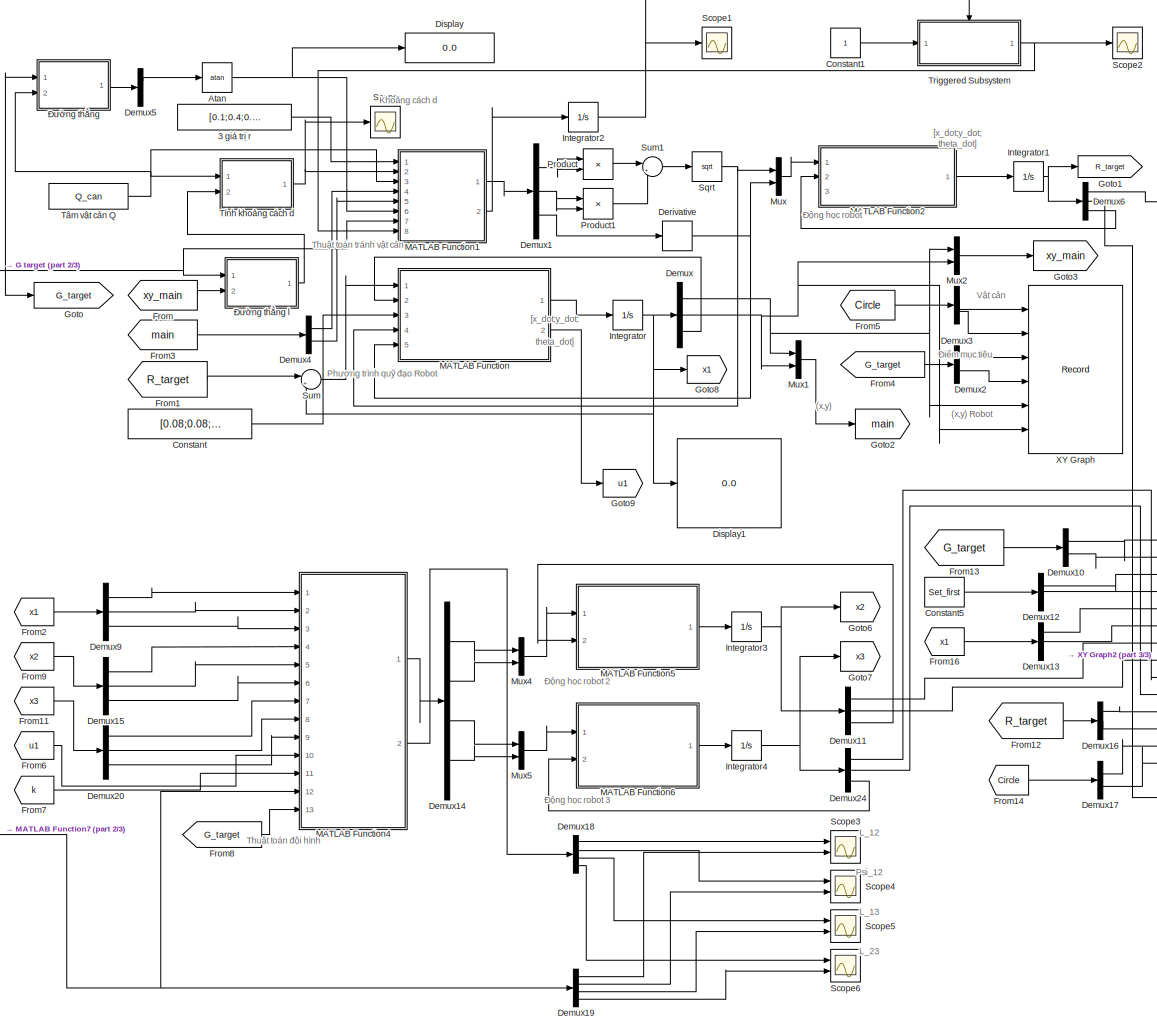
[diagram: root canvas - part 1/3, center side, full height]
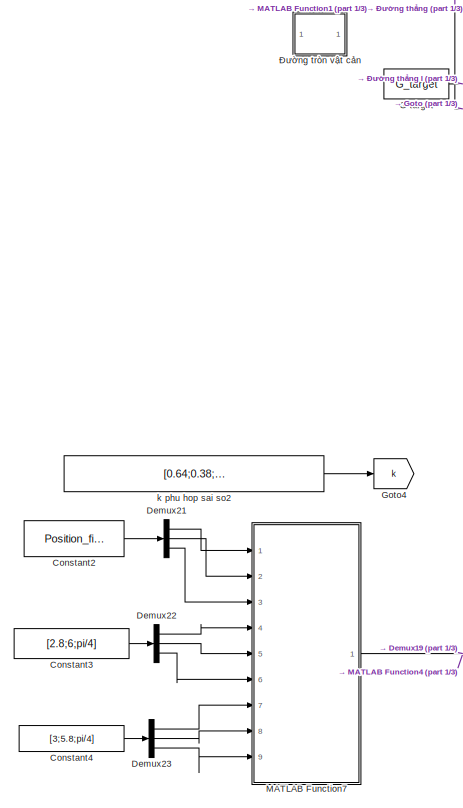
[diagram: root canvas - part 2/3, left side, full height]
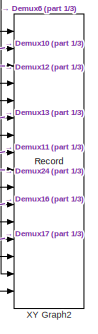
[diagram: root canvas - part 3/3, middle right region]
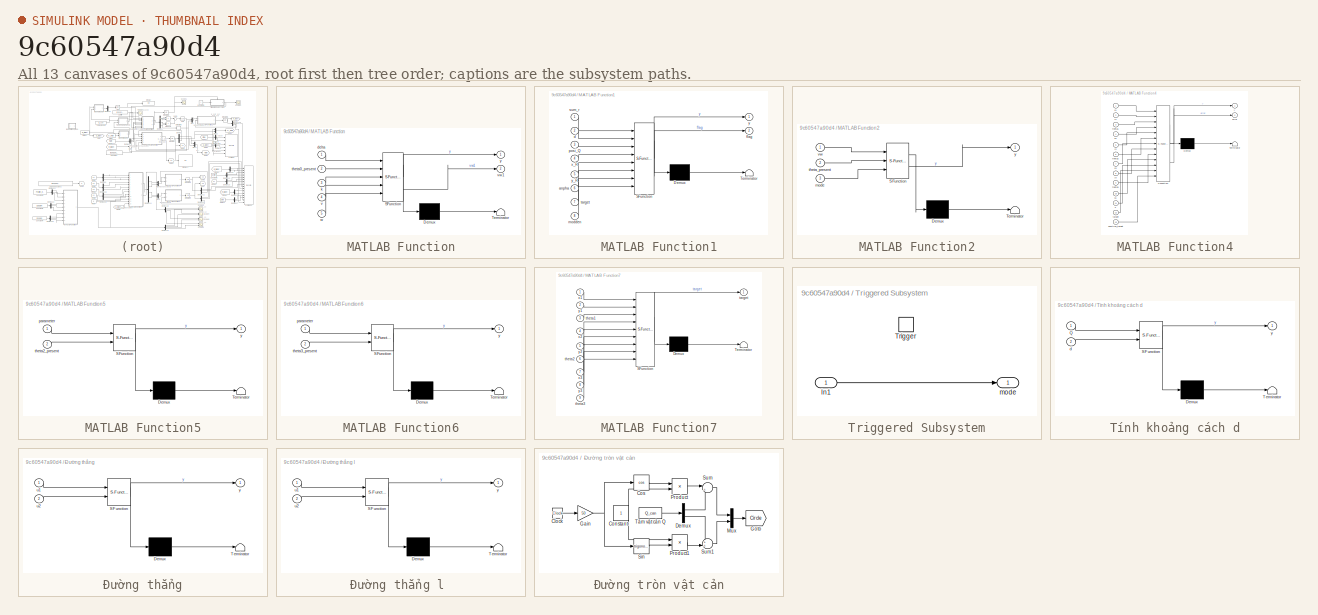
[diagram: thumbnail index - all 13 canvases of the model, root first then tree order]
MODEL slx_9c60547a90d4
KIND model
CONFIG AbsTol = auto
CONFIG EnableMultiTasking = off
CONFIG FixedStep = 0.01
CONFIG MaxStep = auto
CONFIG MinStep = auto
CONFIG RelTol = 1e-3
CONFIG SampleTimeConstraint = Unconstrained
CONFIG SolverName = FixedStepAuto
CONFIG StartTime = 0.0
CONFIG StopTime = 40
BLOCK [Constant] 3 giá trị r
  Value = [0.1;0.4;0.5]
BLOCK [Trigonometry] Atan
  Operator = atan
  Ports = [1, 1]
BLOCK [Constant] Constant
  Value = [0.08;0.08;0.15]
BLOCK [Constant] Constant1
BLOCK [Constant] Constant2
  Value = Position_first_vehicle
BLOCK [Constant] Constant3
  Value = [2.8;6;pi/4]
BLOCK [Constant] Constant4
  Value = [3;5.8;pi/4]
BLOCK [Constant] Constant5
  Value = Set_first
BLOCK [Demux] Demux
  Outputs = 3
  Ports = [1, 3]
BLOCK [Demux] Demux1
  Outputs = 3
  Ports = [1, 3]
BLOCK [Demux] Demux10
  Outputs = 2
  Ports = [1, 2]
BLOCK [Demux] Demux11
  Outputs = 3
  Ports = [1, 3]
BLOCK [Demux] Demux12
  Outputs = 2
  Ports = [1, 2]
BLOCK [Demux] Demux13
  Outputs = 3
  Ports = [1, 3]
BLOCK [Demux] Demux14
  Ports = [1, 4]
BLOCK [Demux] Demux15
  Outputs = 3
  Ports = [1, 3]
BLOCK [Demux] Demux16
  Outputs = 3
  Ports = [1, 3]
BLOCK [Demux] Demux17
  Outputs = 2
  Ports = [1, 2]
BLOCK [Demux] Demux18
  Ports = [1, 4]
BLOCK [Demux] Demux19
  Ports = [1, 4]
BLOCK [Demux] Demux2
  Outputs = 2
  Ports = [1, 2]
BLOCK [Demux] Demux20
  Outputs = 3
  Ports = [1, 3]
BLOCK [Demux] Demux21
  Outputs = 3
  Ports = [1, 3]
BLOCK [Demux] Demux22
  Outputs = 3
  Ports = [1, 3]
BLOCK [Demux] Demux23
  Outputs = 3
  Ports = [1, 3]
BLOCK [Demux] Demux24
  Outputs = 3
  Ports = [1, 3]
BLOCK [Demux] Demux3
  Outputs = 2
  Ports = [1, 2]
BLOCK [Demux] Demux4
  Outputs = 2
  Ports = [1, 2]
BLOCK [Demux] Demux5
  Outputs = 2
  Ports = [1, 2]
BLOCK [Demux] Demux6
  Outputs = 3
  Ports = [1, 3]
BLOCK [Demux] Demux9
  Outputs = 3
  Ports = [1, 3]
BLOCK [Derivative] Derivative
BLOCK [Display] Display
  Decimation = 1
  Ports = [1]
BLOCK [Display] Display1
  Decimation = 1
  Ports = [1]
BLOCK [From] From
  GotoTag = xy_main
BLOCK [From] From1
  GotoTag = R_target
BLOCK [From] From11
  GotoTag = x3
BLOCK [From] From12
  GotoTag = R_target
BLOCK [From] From13
  GotoTag = G_target
BLOCK [From] From14
  GotoTag = Circle
  TagVisibility = global
BLOCK [From] From16
  GotoTag = x1
BLOCK [From] From2
  GotoTag = x1
BLOCK [From] From3
  GotoTag = main
BLOCK [From] From4
  GotoTag = G_target
BLOCK [From] From5
  GotoTag = Circle
  TagVisibility = global
BLOCK [From] From6
  GotoTag = u1
BLOCK [From] From7
  GotoTag = k
BLOCK [From] From8
  GotoTag = G_target
BLOCK [From] From9
  GotoTag = x2
BLOCK [Constant] G target
  Value = G_target
BLOCK [Goto] Goto
  GotoTag = G_target
BLOCK [Goto] Goto1
  GotoTag = R_target
BLOCK [Goto] Goto2
  GotoTag = main
BLOCK [Goto] Goto3
  GotoTag = xy_main
BLOCK [Goto] Goto4
  GotoTag = k
BLOCK [Goto] Goto6
  GotoTag = x2
BLOCK [Goto] Goto7
  GotoTag = x3
BLOCK [Goto] Goto8
  GotoTag = x1
BLOCK [Goto] Goto9
  GotoTag = u1
BLOCK [Integrator] Integrator
  InitialCondition = Position_first_vehicle
  Ports = [1, 1]
BLOCK [Integrator] Integrator1
  InitialCondition = Position_first_vehicle
  Ports = [1, 1]
BLOCK [Integrator] Integrator2
  Ports = [1, 1]
BLOCK [Integrator] Integrator3
  InitialCondition = [2.8;6;pi/4]
  Ports = [1, 1]
BLOCK [Integrator] Integrator4
  InitialCondition = [3;5.8;pi/4]
  Ports = [1, 1]
BLOCK [SubSystem] MATLAB Function
  ErrorFcn = Stateflow.Translate.translate
  PermitHierarchicalResolution = ExplicitOnly
  Ports = [5, 2]
  RequestExecContextInheritance = off
  SFBlockType = MATLAB Function
  TreatAsAtomicUnit = on
BLOCK [Demux] MATLAB Function/ Demux 
  Outputs = 1
  Ports = [1, 1]
BLOCK [S-Function] MATLAB Function/ SFunction 
  EnableBusSupport = on
  FunctionName = sf_sfun
  PortCounts = [5 3]
  Ports = [5, 3]
  SFcnIsStateOwnerBlock = off
  SFunctionDeploymentMode = off
  Tag = Stateflow S-Function 2
BLOCK [Terminator] MATLAB Function/ Terminator 
BLOCK [Inport] MATLAB Function/delta
BLOCK [Inport] MATLAB Function/k
  Port = 3
BLOCK [Inport] MATLAB Function/theta0_present
  Port = 2
BLOCK [Inport] MATLAB Function/v
  Port = 4
BLOCK [Outport] MATLAB Function/vw1
  Port = 2
BLOCK [Inport] MATLAB Function/w
  Port = 5
BLOCK [Outport] MATLAB Function/y
  VectorParamsAs1DForOutWhenUnconnected = off
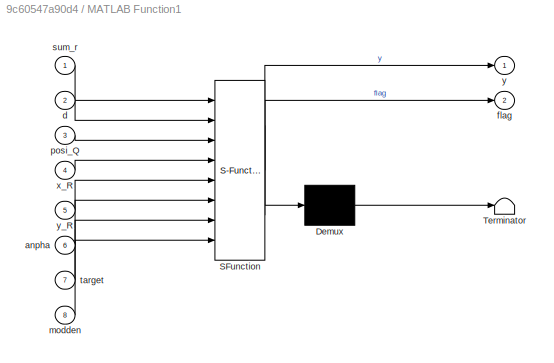
BLOCK [SubSystem] MATLAB Function1
  ErrorFcn = Stateflow.Translate.translate
  PermitHierarchicalResolution = ExplicitOnly
  Ports = [8, 2]
  RequestExecContextInheritance = off
  SFBlockType = MATLAB Function
  TreatAsAtomicUnit = on
BLOCK [Demux] MATLAB Function1/ Demux 
  Outputs = 1
  Ports = [1, 1]
BLOCK [S-Function] MATLAB Function1/ SFunction 
  EnableBusSupport = on
  FunctionName = sf_sfun
  PortCounts = [8 3]
  Ports = [8, 3]
  SFcnIsStateOwnerBlock = off
  SFunctionDeploymentMode = off
  Tag = Stateflow S-Function 4
BLOCK [Terminator] MATLAB Function1/ Terminator 
BLOCK [Inport] MATLAB Function1/anpha
  Port = 6
BLOCK [Inport] MATLAB Function1/d
  Port = 2
BLOCK [Outport] MATLAB Function1/flag
  Port = 2
BLOCK [Inport] MATLAB Function1/modden
  Port = 8
BLOCK [Inport] MATLAB Function1/posi_Q
  Port = 3
BLOCK [Inport] MATLAB Function1/sum_r
BLOCK [Inport] MATLAB Function1/target
  Port = 7
BLOCK [Inport] MATLAB Function1/x_R
  Port = 4
BLOCK [Outport] MATLAB Function1/y
  VectorParamsAs1DForOutWhenUnconnected = off
BLOCK [Inport] MATLAB Function1/y_R
  Port = 5
BLOCK [SubSystem] MATLAB Function2
  ErrorFcn = Stateflow.Translate.translate
  PermitHierarchicalResolution = ExplicitOnly
  Ports = [3, 1]
  RequestExecContextInheritance = off
  SFBlockType = MATLAB Function
  TreatAsAtomicUnit = on
BLOCK [Demux] MATLAB Function2/ Demux 
  Outputs = 1
  Ports = [1, 1]
BLOCK [S-Function] MATLAB Function2/ SFunction 
  EnableBusSupport = on
  FunctionName = sf_sfun
  PortCounts = [3 2]
  Ports = [3, 2]
  SFcnIsStateOwnerBlock = off
  SFunctionDeploymentMode = off
  Tag = Stateflow S-Function 5
BLOCK [Terminator] MATLAB Function2/ Terminator 
BLOCK [Inport] MATLAB Function2/mode
  Port = 3
BLOCK [Inport] MATLAB Function2/theta_present
  Port = 2
BLOCK [Inport] MATLAB Function2/vw
BLOCK [Outport] MATLAB Function2/y
  VectorParamsAs1DForOutWhenUnconnected = off
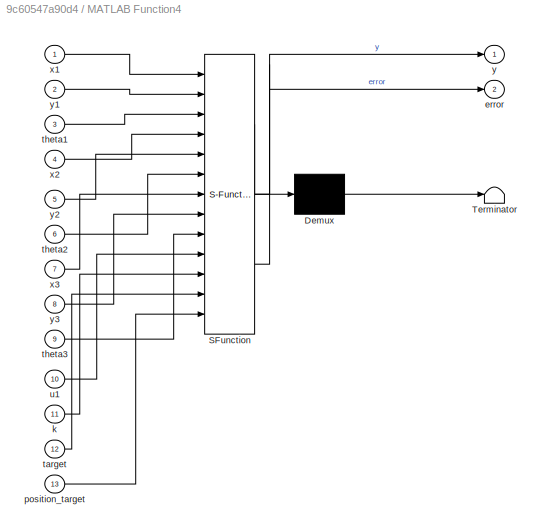
BLOCK [SubSystem] MATLAB Function4
  ErrorFcn = Stateflow.Translate.translate
  PermitHierarchicalResolution = ExplicitOnly
  Ports = [13, 2]
  RequestExecContextInheritance = off
  SFBlockType = MATLAB Function
  TreatAsAtomicUnit = on
BLOCK [Demux] MATLAB Function4/ Demux 
  Outputs = 1
  Ports = [1, 1]
BLOCK [S-Function] MATLAB Function4/ SFunction 
  EnableBusSupport = on
  FunctionName = sf_sfun
  PortCounts = [13 3]
  Ports = [13, 3]
  SFcnIsStateOwnerBlock = off
  SFunctionDeploymentMode = off
  Tag = Stateflow S-Function 8
BLOCK [Terminator] MATLAB Function4/ Terminator 
BLOCK [Outport] MATLAB Function4/error
  Port = 2
BLOCK [Inport] MATLAB Function4/k
  Port = 11
BLOCK [Inport] MATLAB Function4/position_target
  Port = 13
BLOCK [Inport] MATLAB Function4/target
  Port = 12
BLOCK [Inport] MATLAB Function4/theta1
  Port = 3
BLOCK [Inport] MATLAB Function4/theta2
  Port = 6
BLOCK [Inport] MATLAB Function4/theta3
  Port = 9
BLOCK [Inport] MATLAB Function4/u1
  Port = 10
BLOCK [Inport] MATLAB Function4/x1
BLOCK [Inport] MATLAB Function4/x2
  Port = 4
BLOCK [Inport] MATLAB Function4/x3
  Port = 7
BLOCK [Outport] MATLAB Function4/y
  VectorParamsAs1DForOutWhenUnconnected = off
BLOCK [Inport] MATLAB Function4/y1
  Port = 2
BLOCK [Inport] MATLAB Function4/y2
  Port = 5
BLOCK [Inport] MATLAB Function4/y3
  Port = 8
BLOCK [SubSystem] MATLAB Function5
  ErrorFcn = Stateflow.Translate.translate
  PermitHierarchicalResolution = ExplicitOnly
  Ports = [2, 1]
  RequestExecContextInheritance = off
  SFBlockType = MATLAB Function
  TreatAsAtomicUnit = on
BLOCK [Demux] MATLAB Function5/ Demux 
  Outputs = 1
  Ports = [1, 1]
BLOCK [S-Function] MATLAB Function5/ SFunction 
  EnableBusSupport = on
  FunctionName = sf_sfun
  PortCounts = [2 2]
  Ports = [2, 2]
  SFcnIsStateOwnerBlock = off
  SFunctionDeploymentMode = off
  Tag = Stateflow S-Function 9
BLOCK [Terminator] MATLAB Function5/ Terminator 
BLOCK [Inport] MATLAB Function5/parameter
BLOCK [Inport] MATLAB Function5/theta2_present
  Port = 2
BLOCK [Outport] MATLAB Function5/y
  VectorParamsAs1DForOutWhenUnconnected = off
BLOCK [SubSystem] MATLAB Function6
  ErrorFcn = Stateflow.Translate.translate
  PermitHierarchicalResolution = ExplicitOnly
  Ports = [2, 1]
  RequestExecContextInheritance = off
  SFBlockType = MATLAB Function
  TreatAsAtomicUnit = on
BLOCK [Demux] MATLAB Function6/ Demux 
  Outputs = 1
  Ports = [1, 1]
BLOCK [S-Function] MATLAB Function6/ SFunction 
  EnableBusSupport = on
  FunctionName = sf_sfun
  PortCounts = [2 2]
  Ports = [2, 2]
  SFcnIsStateOwnerBlock = off
  SFunctionDeploymentMode = off
  Tag = Stateflow S-Function 10
BLOCK [Terminator] MATLAB Function6/ Terminator 
BLOCK [Inport] MATLAB Function6/parameter
BLOCK [Inport] MATLAB Function6/theta3_present
  Port = 2
BLOCK [Outport] MATLAB Function6/y
  VectorParamsAs1DForOutWhenUnconnected = off
BLOCK [SubSystem] MATLAB Function7
  ErrorFcn = Stateflow.Translate.translate
  PermitHierarchicalResolution = ExplicitOnly
  Ports = [9, 1]
  RequestExecContextInheritance = off
  SFBlockType = MATLAB Function
  TreatAsAtomicUnit = on
BLOCK [Demux] MATLAB Function7/ Demux 
  Outputs = 1
  Ports = [1, 1]
BLOCK [S-Function] MATLAB Function7/ SFunction 
  EnableBusSupport = on
  FunctionName = sf_sfun
  PortCounts = [9 2]
  Ports = [9, 2]
  SFcnIsStateOwnerBlock = off
  SFunctionDeploymentMode = off
  Tag = Stateflow S-Function 11
BLOCK [Terminator] MATLAB Function7/ Terminator 
BLOCK [Outport] MATLAB Function7/target
  VectorParamsAs1DForOutWhenUnconnected = off
BLOCK [Inport] MATLAB Function7/theta1
  Port = 3
BLOCK [Inport] MATLAB Function7/theta2
  Port = 6
BLOCK [Inport] MATLAB Function7/theta3
  Port = 9
BLOCK [Inport] MATLAB Function7/x1
BLOCK [Inport] MATLAB Function7/x2
  Port = 4
BLOCK [Inport] MATLAB Function7/x3
  Port = 7
BLOCK [Inport] MATLAB Function7/y1
  Port = 2
BLOCK [Inport] MATLAB Function7/y2
  Port = 5
BLOCK [Inport] MATLAB Function7/y3
  Port = 8
BLOCK [Mux] Mux
  DisplayOption = bar
  Inputs = 2
  Ports = [2, 1]
BLOCK [Mux] Mux1
  DisplayOption = bar
  Inputs = 2
  Ports = [2, 1]
BLOCK [Mux] Mux2
  DisplayOption = bar
  Inputs = 2
  Ports = [2, 1]
BLOCK [Mux] Mux4
  DisplayOption = bar
  Inputs = 2
  Ports = [2, 1]
BLOCK [Mux] Mux5
  DisplayOption = bar
  Inputs = 2
  Ports = [2, 1]
BLOCK [Product] Product
  Ports = [2, 1]
BLOCK [Product] Product1
  Ports = [2, 1]
BLOCK [Scope] Scope
  Floating = off
  NumInputPorts = 1
  Ports = [1]
  ScopeSpecificationString = Simulink.scopes.TimeScopeBlockCfg('CurrentConfiguration', extmgr.ConfigurationSet(extmgr.Configuration('Core','General UI',true),extmgr.Configuration('Core','Source UI',true),extmgr.Configuration('Sources','WiredSimulink',true,'DataLoggingVariableName','ScopeData1'),extmgr.Configuration('Visuals','Time Domain',true,'SerializedDisplays',{struct('MinYLimReal','-0.87445','MaxYLimReal','-0.08367','YLa...<+1408ch>
BLOCK [Scope] Scope1
  Floating = off
  NumInputPorts = 1
  Ports = [1]
  ScopeSpecificationString = Simulink.scopes.TimeScopeBlockCfg('CurrentConfiguration', extmgr.ConfigurationSet(extmgr.Configuration('Core','General UI',true),extmgr.Configuration('Core','Source UI',true),extmgr.Configuration('Sources','WiredSimulink',true,'DataLoggingVariableName','ScopeData2'),extmgr.Configuration('Visuals','Time Domain',true,'SerializedDisplays',{struct('MinYLimReal','-2.34375','MaxYLimReal','21.09375','YLa...<+1521ch>
BLOCK [Scope] Scope2
  Floating = off
  NumInputPorts = 1
  Ports = [1]
  ScopeSpecificationString = Simulink.scopes.TimeScopeBlockCfg('CurrentConfiguration', extmgr.ConfigurationSet(extmgr.Configuration('Core','General UI',true),extmgr.Configuration('Core','Source UI',true),extmgr.Configuration('Sources','WiredSimulink',true),extmgr.Configuration('Visuals','Time Domain',true,'SerializedDisplays',{struct('MinYLimReal','-0.125','MaxYLimReal','1.125','YLabelReal','','MinYLimMag','0.00000','MaxYLimM...<+1358ch>
BLOCK [Scope] Scope3
  Floating = off
  NumInputPorts = 2
  Ports = [2]
  ScopeSpecificationString = Simulink.scopes.TimeScopeBlockCfg('CurrentConfiguration', extmgr.ConfigurationSet(extmgr.Configuration('Core','General UI',true,'FigureColor',[1 1 1]),extmgr.Configuration('Core','Source UI',true),extmgr.Configuration('Sources','WiredSimulink',true,'DataLoggingVariableName','ScopeData1'),extmgr.Configuration('Visuals','Time Domain',true,'SerializedDisplays',{struct('MinYLimReal','0.14733','MaxYLim...<+1781ch>
BLOCK [Scope] Scope4
  Floating = off
  NumInputPorts = 2
  Ports = [2]
  ScopeSpecificationString = Simulink.scopes.TimeScopeBlockCfg('CurrentConfiguration', extmgr.ConfigurationSet(extmgr.Configuration('Core','General UI',true,'FigureColor',[1 1 1]),extmgr.Configuration('Core','Source UI',true),extmgr.Configuration('Sources','WiredSimulink',true,'DataLoggingVariableName','ScopeData2'),extmgr.Configuration('Visuals','Time Domain',true,'SerializedDisplays',{struct('MinYLimReal','1.49617','MaxYLim...<+1787ch>
BLOCK [Scope] Scope5
  Floating = off
  NumInputPorts = 2
  Ports = [2]
  ScopeSpecificationString = Simulink.scopes.TimeScopeBlockCfg('CurrentConfiguration', extmgr.ConfigurationSet(extmgr.Configuration('Core','General UI',true,'FigureColor',[1 1 1]),extmgr.Configuration('Core','Source UI',true),extmgr.Configuration('Sources','WiredSimulink',true,'DataLoggingVariableName','ScopeData3'),extmgr.Configuration('Visuals','Time Domain',true,'SerializedDisplays',{struct('MinYLimReal','0.14867','MaxYLim...<+1671ch>
BLOCK [Scope] Scope6
  Floating = off
  NumInputPorts = 2
  Ports = [2]
  ScopeSpecificationString = Simulink.scopes.TimeScopeBlockCfg('CurrentConfiguration', extmgr.ConfigurationSet(extmgr.Configuration('Core','General UI',true,'FigureColor',[1 1 1]),extmgr.Configuration('Core','Source UI',true),extmgr.Configuration('Sources','WiredSimulink',true,'DataLoggingVariableName','ScopeData4'),extmgr.Configuration('Visuals','Time Domain',true,'SerializedDisplays',{struct('MinYLimReal','0.2968','MaxYLimR...<+1669ch>
BLOCK [Sqrt] Sqrt
BLOCK [Sum] Sum
  Inputs = |+-
  Ports = [2, 1]
BLOCK [Sum] Sum1
  Inputs = |++
  Ports = [2, 1]
BLOCK [SubSystem] Triggered Subsystem
  Ports = [1, 1, 0, 1]
  RequestExecContextInheritance = off
  TreatAsAtomicUnit = on
BLOCK [Inport] Triggered Subsystem/In1
BLOCK [TriggerPort] Triggered Subsystem/Trigger
  Ports = []
  StatesWhenEnabling = held
  VariantControl = (inherit)
BLOCK [Outport] Triggered Subsystem/mode
BLOCK [Constant] Tâm vật cản Q
  Value = Q_can
BLOCK [SubSystem] Tính khoảng cách d
  ErrorFcn = Stateflow.Translate.translate
  PermitHierarchicalResolution = ExplicitOnly
  Ports = [2, 1]
  RequestExecContextInheritance = off
  SFBlockType = MATLAB Function
  TreatAsAtomicUnit = on
BLOCK [Demux] Tính khoảng cách d/ Demux 
  Outputs = 1
  Ports = [1, 1]
BLOCK [S-Function] Tính khoảng cách d/ SFunction 
  EnableBusSupport = on
  FunctionName = sf_sfun
  PortCounts = [2 2]
  Ports = [2, 2]
  SFcnIsStateOwnerBlock = off
  SFunctionDeploymentMode = off
  Tag = Stateflow S-Function 3
BLOCK [Terminator] Tính khoảng cách d/ Terminator 
BLOCK [Inport] Tính khoảng cách d/Q
BLOCK [Inport] Tính khoảng cách d/d
  Port = 2
BLOCK [Outport] Tính khoảng cách d/y
  VectorParamsAs1DForOutWhenUnconnected = off
BLOCK [Record] XY Graph
  CompatibilityTag = XY
  FileSettingsInternal = {"entries":[{"content":{"excelSettings":{"content":{},"type":"Streamout.ExcelSettings"}},"type":"Streamout.FileSettingStorage","uuid":"a8d3b570-9e37-41a1-b9b1-4b418e9d51ca"}],"packageUris":["http://schema.mathworks.com/mf0/streamout_blocks/R2020a"],"version":"1.0"}
  Layout = [1 1]
  Ports = [6]
  SignalsInternal = {"entries":[{"content":{"signals":[{"content":{"blockPath":["Avoid_vat_can_3xe/XY Graph"],"channel":[],"dimensions":[1],"domain":"Avoid_vat_can_3xe/XY Graph","lineColor":"#ff6929","plots":[1],"port":1,"sid":[""],"signalID":4338,"signalName":"Demux3:1"},"type":"RecordBlkView.Signal","uuid":"8399b9d0-b1dd-4b64-90be-267014180888"},{"content":{"blockPath":["Avoid_vat_can_3xe/XY Graph"],"channel":[],"d...<+1579ch>
  VisualizationBindings = {"xyplotplugin":{"info":[{"series":[{"bindingParametersList":[{"parameter":"X-Axis","signalID":4338,"signalName":"Demux3:1"},{"parameter":"Y-Axis","signalID":4342,"signalName":"Demux3:2"}],"seriesID":26607},{"bindingParametersList":[{"parameter":"X-Axis","signalID":4402,"signalName":"Demux2:1"},{"parameter":"Y-Axis","signalID":4406,"signalName":"Demux2:2"}],"seriesID":58074},{"bindingParametersLis...<+193ch>
BLOCK [Record] XY Graph2
  CompatibilityTag = XY
  FileSettingsInternal = {"entries":[{"content":{"excelSettings":{"content":{},"type":"Streamout.ExcelSettings"}},"type":"Streamout.FileSettingStorage","uuid":"ed37455e-9adf-4e9b-bed2-b0034767e237"}],"packageUris":["http://schema.mathworks.com/mf0/streamout_blocks/R2020a"],"version":"1.0"}
  Layout = [1 1]
  Ports = [16]
  SignalsInternal = {"entries":[{"content":{"signals":[{"content":{"blockPath":["Avoid_vat_can_3xe/XY Graph2"],"channel":[],"dimensions":[1],"domain":"Avoid_vat_can_3xe/XY Graph2","lineColor":"#ff6929","plots":[1],"port":5,"sid":[""],"signalID":4354,"signalName":"Demux13:1"},"type":"RecordBlkView.Signal","uuid":"0d8b8474-356b-455b-a3d2-928f594b97db"},{"content":{"blockPath":["Avoid_vat_can_3xe/XY Graph2"],"channel":[...<+4592ch>
  VisualizationBindings = {"xyplotplugin":{"info":[{"series":[{"bindingParametersList":[{"parameter":"X-Axis","signalID":4410,"signalName":"Demux10:1"},{"parameter":"Y-Axis","signalID":4414,"signalName":"Demux10:2"}],"seriesID":62746},{"bindingParametersList":[{"parameter":"X-Axis","signalID":4386,"signalName":"Demux17:1"},{"parameter":"Y-Axis","signalID":4390,"signalName":"Demux17:2"}],"seriesID":60584},{"bindingParameter...<+1121ch>
BLOCK [Constant] k phu hop sai so2
  Value = [0.64;0.38;0.053;0.023]
BLOCK [SubSystem] Đường thẳng
  ErrorFcn = Stateflow.Translate.translate
  PermitHierarchicalResolution = ExplicitOnly
  Ports = [2, 1]
  RequestExecContextInheritance = off
  SFBlockType = MATLAB Function
  TreatAsAtomicUnit = on
BLOCK [SubSystem] Đường thẳng l 
  ErrorFcn = Stateflow.Translate.translate
  PermitHierarchicalResolution = ExplicitOnly
  Ports = [2, 1]
  RequestExecContextInheritance = off
  SFBlockType = MATLAB Function
  TreatAsAtomicUnit = on
BLOCK [Demux] Đường thẳng l / Demux 
  Outputs = 1
  Ports = [1, 1]
BLOCK [S-Function] Đường thẳng l / SFunction 
  EnableBusSupport = on
  FunctionName = sf_sfun
  PortCounts = [2 2]
  Ports = [2, 2]
  SFcnIsStateOwnerBlock = off
  SFunctionDeploymentMode = off
  Tag = Stateflow S-Function 1
BLOCK [Terminator] Đường thẳng l / Terminator 
BLOCK [Inport] Đường thẳng l /u1
BLOCK [Inport] Đường thẳng l /u2
  Port = 2
BLOCK [Outport] Đường thẳng l /y
  VectorParamsAs1DForOutWhenUnconnected = off
BLOCK [Demux] Đường thẳng/ Demux 
  Outputs = 1
  Ports = [1, 1]
BLOCK [S-Function] Đường thẳng/ SFunction 
  EnableBusSupport = on
  FunctionName = sf_sfun
  PortCounts = [2 2]
  Ports = [2, 2]
  SFcnIsStateOwnerBlock = off
  SFunctionDeploymentMode = off
  Tag = Stateflow S-Function 6
BLOCK [Terminator] Đường thẳng/ Terminator 
BLOCK [Inport] Đường thẳng/u1
BLOCK [Inport] Đường thẳng/u2
  Port = 2
BLOCK [Outport] Đường thẳng/y
  VectorParamsAs1DForOutWhenUnconnected = off
BLOCK [SubSystem] Đường tròn vật cản
  Ports = []
  RequestExecContextInheritance = off
BLOCK [Clock] Đường tròn vật cản/Clock
BLOCK [Constant] Đường tròn vật cản/Constant
BLOCK [Trigonometry] Đường tròn vật cản/Cos
  Operator = cos
  Ports = [1, 1]
BLOCK [Demux] Đường tròn vật cản/Demux
  Outputs = 2
  Ports = [1, 2]
BLOCK [Gain] Đường tròn vật cản/Gain
  Gain = 50
BLOCK [Goto] Đường tròn vật cản/Goto
  GotoTag = Circle
  TagVisibility = global
BLOCK [Mux] Đường tròn vật cản/Mux
  DisplayOption = bar
  Inputs = 2
  Ports = [2, 1]
BLOCK [Product] Đường tròn vật cản/Product
  Ports = [2, 1]
BLOCK [Product] Đường tròn vật cản/Product1
  Ports = [2, 1]
BLOCK [Trigonometry] Đường tròn vật cản/Sin
  Ports = [1, 1]
BLOCK [Sum] Đường tròn vật cản/Sum
  Inputs = |++
  Ports = [2, 1]
BLOCK [Sum] Đường tròn vật cản/Sum1
  Inputs = ++|
  Ports = [2, 1]
BLOCK [Constant] Đường tròn vật cản/Tâm vật cản Q
  Value = Q_can
ANNOTATION (root): (x,y)
ANNOTATION (root): (x,y) Robot
ANNOTATION (root): L_12
ANNOTATION (root): L_13
ANNOTATION (root): L_23
ANNOTATION (root): Phương trình quỹ đạo Robot
ANNOTATION (root): Psi_12
ANNOTATION (root): Thuật toán tránh vật cản
ANNOTATION (root): Thuật toán đội hình
ANNOTATION (root): Động học robot 2
ANNOTATION (root): Động học robot 3
ANNOTATION (root): Động học robot
ANNOTATION (root): Khoảng cách d
ANNOTATION (root): Vật cản
ANNOTATION (root): [x_dot;y_dot; theta_dot]
ANNOTATION (root): Điểm mục tiêu
LINE 3 giá trị r:1 -> MATLAB Function1:1
NET Atan:1 -> Display:1, MATLAB Function1:6
LINE Constant1:1 -> Triggered Subsystem:1
LINE Constant2:1 -> Demux21:1
LINE Constant3:1 -> Demux22:1
LINE Constant4:1 -> Demux23:1
LINE Constant5:1 -> Demux12:1
LINE Constant:1 -> MATLAB Function:3
LINE Demux10:1 -> XY Graph2:1
LINE Demux10:2 -> XY Graph2:2
LINE Demux11:1 -> XY Graph2:7
LINE Demux11:2 -> XY Graph2:8
LINE Demux11:3 -> MATLAB Function5:2
LINE Demux12:1 -> XY Graph2:3
LINE Demux12:2 -> XY Graph2:4
LINE Demux13:1 -> XY Graph2:5
LINE Demux13:2 -> XY Graph2:6
LINE Demux14:1 -> Mux4:1
LINE Demux14:2 -> Mux4:2
LINE Demux14:3 -> Mux5:1
LINE Demux14:4 -> Mux5:2
LINE Demux15:1 -> MATLAB Function4:4
LINE Demux15:2 -> MATLAB Function4:5
LINE Demux15:3 -> MATLAB Function4:6
LINE Demux16:1 -> XY Graph2:11
LINE Demux16:2 -> XY Graph2:12
LINE Demux17:1 -> XY Graph2:13
LINE Demux17:2 -> XY Graph2:14
LINE Demux18:1 -> Scope3:1
LINE Demux18:2 -> Scope4:1
LINE Demux18:3 -> Scope5:1
LINE Demux18:4 -> Scope6:1
LINE Demux19:1 -> Scope3:2
LINE Demux19:2 -> Scope4:2
LINE Demux19:3 -> Scope5:2
LINE Demux19:4 -> Scope6:2
NET Demux1:1 -> Product:1, Product:2
NET Demux1:2 -> Product1:1, Product1:2
LINE Demux1:3 -> Derivative:1
LINE Demux20:1 -> MATLAB Function4:7
LINE Demux20:2 -> MATLAB Function4:8
LINE Demux20:3 -> MATLAB Function4:9
LINE Demux21:1 -> MATLAB Function7:1
LINE Demux21:2 -> MATLAB Function7:2
LINE Demux21:3 -> MATLAB Function7:3
LINE Demux22:1 -> MATLAB Function7:4
LINE Demux22:2 -> MATLAB Function7:5
LINE Demux22:3 -> MATLAB Function7:6
LINE Demux23:1 -> MATLAB Function7:7
LINE Demux23:2 -> MATLAB Function7:8
LINE Demux23:3 -> MATLAB Function7:9
LINE Demux24:1 -> XY Graph2:9
LINE Demux24:2 -> XY Graph2:10
LINE Demux24:3 -> MATLAB Function6:2
LINE Demux2:1 -> XY Graph:3
LINE Demux2:2 -> XY Graph:4
LINE Demux3:1 -> XY Graph:1
LINE Demux3:2 -> XY Graph:2
LINE Demux4:1 -> MATLAB Function1:4
LINE Demux4:2 -> MATLAB Function1:5
LINE Demux5:1 -> Atan:1
LINE Demux6:1 -> XY Graph2:15
LINE Demux6:2 -> XY Graph2:16
LINE Demux6:3 -> MATLAB Function2:2
LINE Demux9:1 -> MATLAB Function4:1
LINE Demux9:2 -> MATLAB Function4:2
LINE Demux9:3 -> MATLAB Function4:3
NET Demux:1 -> Mux1:1, Mux2:1, XY Graph:5
NET Demux:2 -> Mux1:2, Mux2:2, XY Graph:6
LINE Demux:3 -> MATLAB Function:2
NET Derivative:1 -> MATLAB Function:5, Mux:2
LINE From11:1 -> Demux20:1
LINE From12:1 -> Demux16:1
LINE From13:1 -> Demux10:1
LINE From14:1 -> Demux17:1
LINE From16:1 -> Demux13:1
LINE From1:1 -> Sum:1
LINE From2:1 -> Demux9:1
LINE From3:1 -> Demux4:1
LINE From4:1 -> Demux2:1
LINE From5:1 -> Demux3:1
LINE From6:1 -> MATLAB Function4:10
LINE From7:1 -> MATLAB Function4:11
LINE From8:1 -> MATLAB Function4:13
LINE From9:1 -> Demux15:1
LINE From:1 -> Đường thẳng l :2
NET G target:1 -> Goto:1, MATLAB Function1:7, Đường thẳng l :1, Đường thẳng:1
NET Integrator1:1 -> Demux6:1, Goto1:1
NET Integrator2:1 -> Scope1:1, Triggered Subsystem:trigger
NET Integrator3:1 -> Demux11:1, Goto6:1
NET Integrator4:1 -> Demux24:1, Goto7:1
NET Integrator:1 -> Demux:1, Display1:1, Goto8:1, Sum:2
LINE MATLAB Function1:1 -> Demux1:1
LINE MATLAB Function1:2 -> Integrator2:1
LINE MATLAB Function2:1 -> Integrator1:1
LINE MATLAB Function4:1 -> Demux14:1
LINE MATLAB Function4:2 -> Demux18:1
LINE MATLAB Function5:1 -> Integrator3:1
LINE MATLAB Function6:1 -> Integrator4:1
NET MATLAB Function7:1 -> Demux19:1, MATLAB Function4:12
LINE MATLAB Function:1 -> Integrator:1
LINE MATLAB Function:2 -> Goto9:1
LINE Mux1:1 -> Goto2:1
LINE Mux2:1 -> Goto3:1
LINE Mux4:1 -> MATLAB Function5:1
LINE Mux5:1 -> MATLAB Function6:1
LINE Mux:1 -> MATLAB Function2:1
LINE Product1:1 -> Sum1:2
LINE Product:1 -> Sum1:1
NET Sqrt:1 -> MATLAB Function:4, Mux:1
LINE Sum1:1 -> Sqrt:1
LINE Sum:1 -> MATLAB Function:1
LINE Triggered Subsystem/In1:1 -> Triggered Subsystem/mode:1
NET Triggered Subsystem:1 -> MATLAB Function1:8, Scope2:1
NET Tâm vật cản Q:1 -> MATLAB Function1:3, Tính khoảng cách d:1, Đường thẳng:2
NET Tính khoảng cách d:1 -> MATLAB Function1:2, Scope:1
LINE k phu hop sai so2:1 -> Goto4:1
LINE Đường thẳng l :1 -> Tính khoảng cách d:2
LINE Đường thẳng:1 -> Demux5:1
LINE Đường tròn vật cản/Clock:1 -> Đường tròn vật cản/Gain:1
NET Đường tròn vật cản/Constant:1 -> Đường tròn vật cản/Product1:1, Đường tròn vật cản/Product:2
LINE Đường tròn vật cản/Cos:1 -> Đường tròn vật cản/Product:1
LINE Đường tròn vật cản/Demux:1 -> Đường tròn vật cản/Sum:2
LINE Đường tròn vật cản/Demux:2 -> Đường tròn vật cản/Sum1:1
NET Đường tròn vật cản/Gain:1 -> Đường tròn vật cản/Cos:1, Đường tròn vật cản/Sin:1
LINE Đường tròn vật cản/Mux:1 -> Đường tròn vật cản/Goto:1
LINE Đường tròn vật cản/Product1:1 -> Đường tròn vật cản/Sum1:2
LINE Đường tròn vật cản/Product:1 -> Đường tròn vật cản/Sum:1
LINE Đường tròn vật cản/Sin:1 -> Đường tròn vật cản/Product1:2
LINE Đường tròn vật cản/Sum1:1 -> Đường tròn vật cản/Mux:2
LINE Đường tròn vật cản/Sum:1 -> Đường tròn vật cản/Mux:1
LINE Đường tròn vật cản/Tâm vật cản Q:1 -> Đường tròn vật cản/Demux:1
note: NET lines group one-source signal fan-out (src -> all destinations, sorted); 1:1 wires keep LINE
CHART MATLAB Function5 states=1 transitions=1
  STATE_LABEL 'eML_blk_kernel()'
  STATE_LABEL 'SCRIPT:\nfunction y = fcn(parameter,theta2_present)\n%#codegen\nMatrix=[cos(theta2_present) 0;\n        sin(theta2_present) 0;\n        0                   1];\nu=Matrix*parameter;\ny = u;'
CHART MATLAB Function6 states=1 transitions=1
  STATE_LABEL 'eML_blk_kernel()'
  STATE_LABEL 'SCRIPT:\nfunction y = fcn(parameter,theta3_present)\n%#codegen\nMatrix=[cos(theta3_present) 0;\n        sin(theta3_present) 0;\n        0                   1];\nu=Matrix*parameter;\ny = u;'
CHART MATLAB Function7 states=1 transitions=1
  STATE_LABEL 'eML_blk_kernel()'
  STATE_LABEL 'SCRIPT:\nfunction target = fcn(x1,y1,theta1,x2,y2,theta2,x3,y3,theta3)\n%#codegen\nd=0.09;\n\nL12_x=x1-x2-d*cos(theta2);\nL12_y=y1-y2-d*sin(theta2);\nL13_x=x1-x3-d*cos(theta3);\nL13_y=y1-y3-d*sin(theta3);\nL23_x=x2-x3-d*cos(theta3);\nL23_y=y2-y3-d*sin(theta3);\n\nL12=sqrt(L12_x^2+L12_y^2);\nL13=sqrt(L13_x^2+L13_y^2);\nL23=sqrt(L23_x^2+L23_y^2);\n\nmega12=atan(L12_y/L12_x)-theta1+pi;\ntarget=[L12;mega12;L13;L23];\n\n'
CHART Đường thẳng l  states=1 transitions=1
  STATE_LABEL 'eML_blk_kernel()'
  STATE_LABEL 'SCRIPT:\nfunction y = fcn(u1,u2)\n%#codegen\n% Đường thẳng từ tâm Robot đến điểm mục tiêu\na=(u1(2)-u2(2))/(u1(1)-u2(1));\nb=u1(2)-u1(1)*a;\nu=[a;b];\ny = u;'
CHART MATLAB Function states=1 transitions=1
  STATE_LABEL 'eML_blk_kernel()'
  STATE_LABEL 'SCRIPT:\nfunction [y,vw1] = fcn(delta,theta0_present,k,v,w)\n%#codegen\nA=[cos(theta0_present)   sin(theta0_present) 0;\n    -sin(theta0_present) cos(theta0_present) 0;\n    0                    0                    1];\ne=A*delta;\nV_c=[v*cos(e(3))+k(1)*e(1);\n    w+k(2)*v*e(2)+k(3)*v*sin(e(3))];\n\nMatrix=[cos(theta0_present) 0;\n        sin(theta0_present) 0;\n        0                   1];\nu=Matrix*V_c;\n...<+15ch>'
CHART Tính khoảng cách d states=1 transitions=1
  STATE_LABEL 'eML_blk_kernel()'
  STATE_LABEL 'SCRIPT:\nfunction y = fcn(Q,d)\n%#codegen\na=d(1);\nb=-1;\nc=d(2);\nu=( Q(1)*a + b*Q(2) +c )/sqrt(a^2+b^2);\ny = u;'
CHART MATLAB Function1 states=1 transitions=1
  STATE_LABEL 'eML_blk_kernel()'
  STATE_LABEL 'SCRIPT:\nfunction [y,flag]= fcn(sum_r,d,posi_Q,x_R,y_R,anpha,target,modden)\n%#codegen\nrv=sum_r(1)+sum_r(2)+sum_r(3);\n\n\n\nM=[cos(anpha) -sin(anpha) 0 posi_Q(1);\n    sin(anpha) cos(anpha) 0 posi_Q(2);\n    0 0 1 0;\n    0 0 0 1];\nN=[x_R;y_R;0;1];\nVitri=inv(M)*N;\ndd=abs(2.4843*x_R-y_R-6.4)/sqrt(2.4843^2+1);\nif ((d<rv) &&(dd>0.01))\n    mode=0;\nelse\n    mode=1;\n\nend\n\nif (modden==0)\n        xr_dot=(d/abs(d)...<+574ch>'
CHART MATLAB Function2 states=1 transitions=1
  STATE_LABEL 'eML_blk_kernel()'
  STATE_LABEL 'SCRIPT:\nfunction y = fcn(vw,theta_present,mode)\n%#codegen\n% if (mode==0)\n%     vw1=[vw(1);vw(2)];\n% else\n%     vw1=[0.04;0];\n% end\nMatrix=[cos(theta_present) 0;\n        sin(theta_present) 0;\n        0                   1];\nu=Matrix*vw;\ny = u;'
CHART Đường thẳng states=1 transitions=1
  STATE_LABEL 'eML_blk_kernel()'
  STATE_LABEL 'SCRIPT:\nfunction y = fcn(u1,u2)\n%Đường thẳng từ mục tiêu đến tâm vật cản\na=(u1(2)-u2(2))/(u1(1)-u2(1)); %hệ số góc\nb=u1(2)-u1(1)*a;\nu=[a;b];\ny = u;'
CHART MATLAB Function4 states=1 transitions=1
  STATE_LABEL 'eML_blk_kernel()'
  STATE_LABEL 'SCRIPT:\nfunction [y,error] = fcn(x1,y1,theta1,x2,y2,theta2,x3,y3,theta3,u1,k,target,position_target)\n%#codegen\nd=0.09;\n\nL12_x=x1-x2-d*cos(theta2);\nL12_y=y1-y2-d*sin(theta2);\nL13_x=x1-x3-d*cos(theta3);\nL13_y=y1-y3-d*sin(theta3);\nL23_x=x2-x3-d*cos(theta3);\nL23_y=y2-y3-d*sin(theta3);\n\nL12=sqrt(L12_x^2+L12_y^2);\nL13=sqrt(L13_x^2+L13_y^2);\nL23=sqrt(L23_x^2+L23_y^2);\n\nmega12=atan(L12_y/L12_x)-theta1+pi;...<+783ch>'
CHART  states=0 transitions=0
CHART  states=0 transitions=0
CHART  states=0 transitions=0
CHART  states=0 transitions=0
CHART  states=0 transitions=0
CHART  states=0 transitions=0
CHART  states=0 transitions=0
CHART  states=0 transitions=0
CHART  states=0 transitions=0
CHART  states=0 transitions=0
